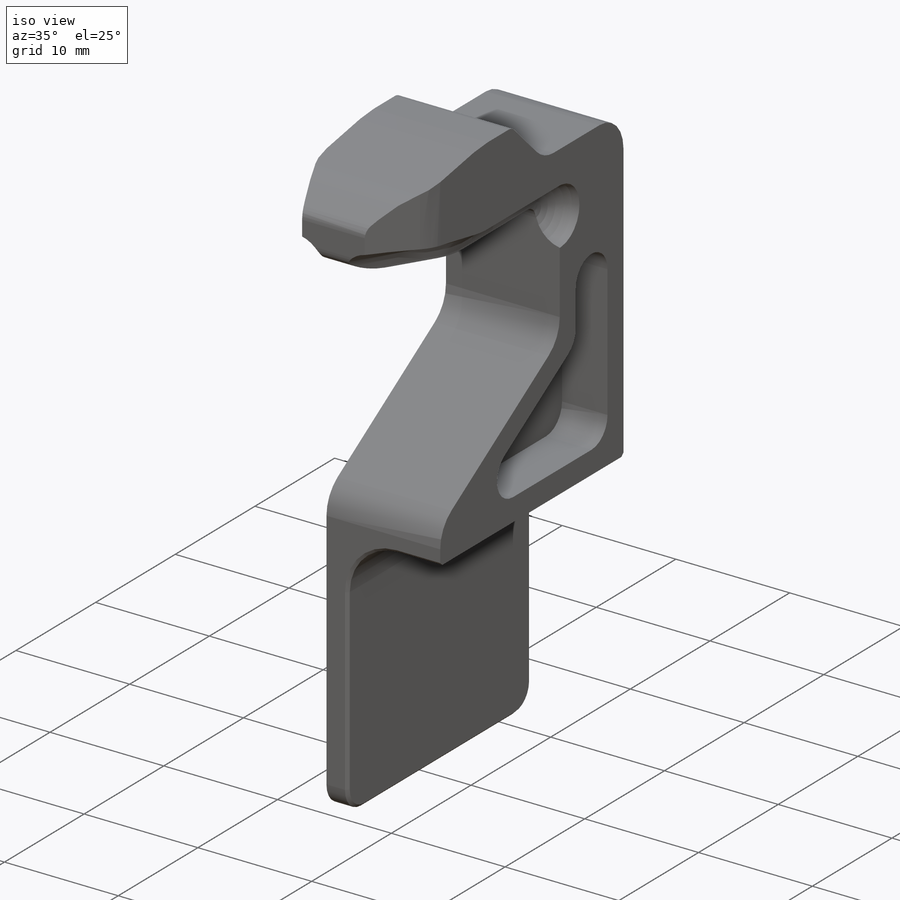
[diagram: iso view]
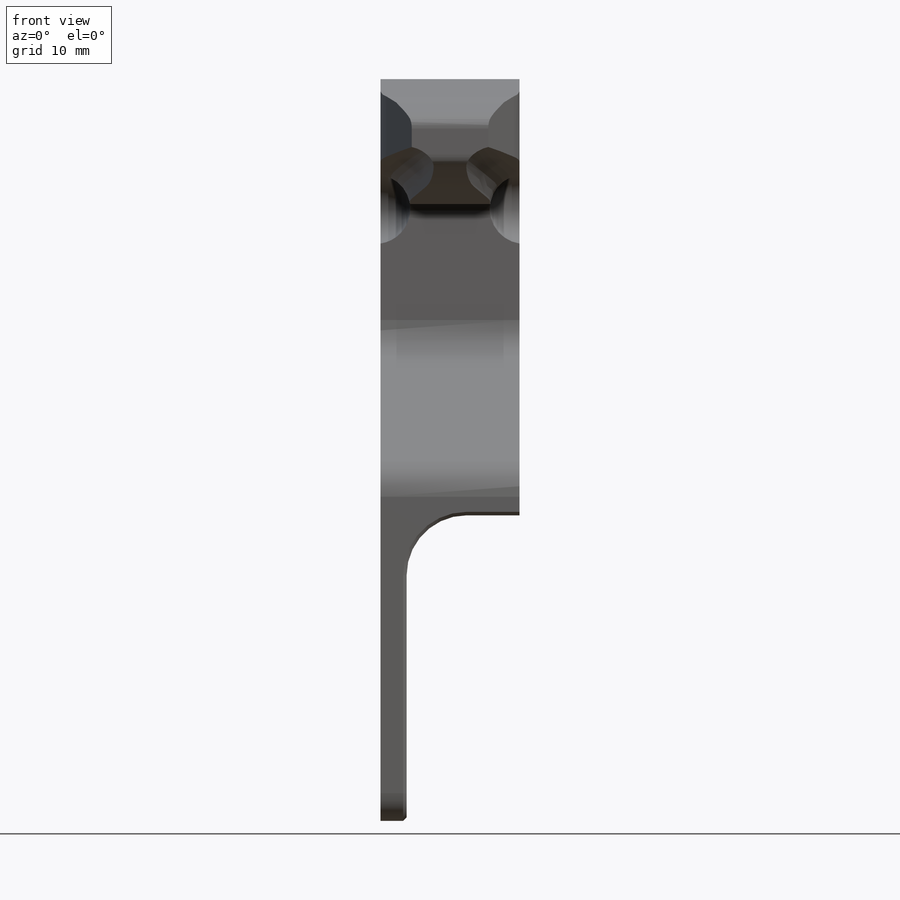
[diagram: front view]
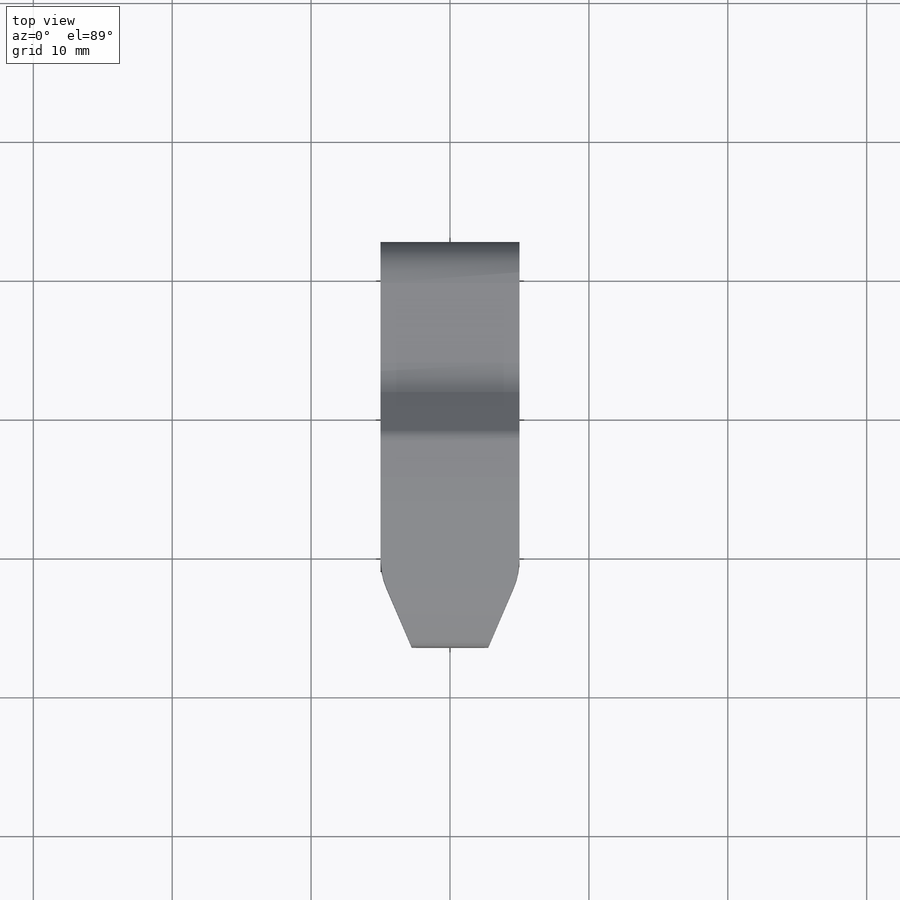
[diagram: top view]
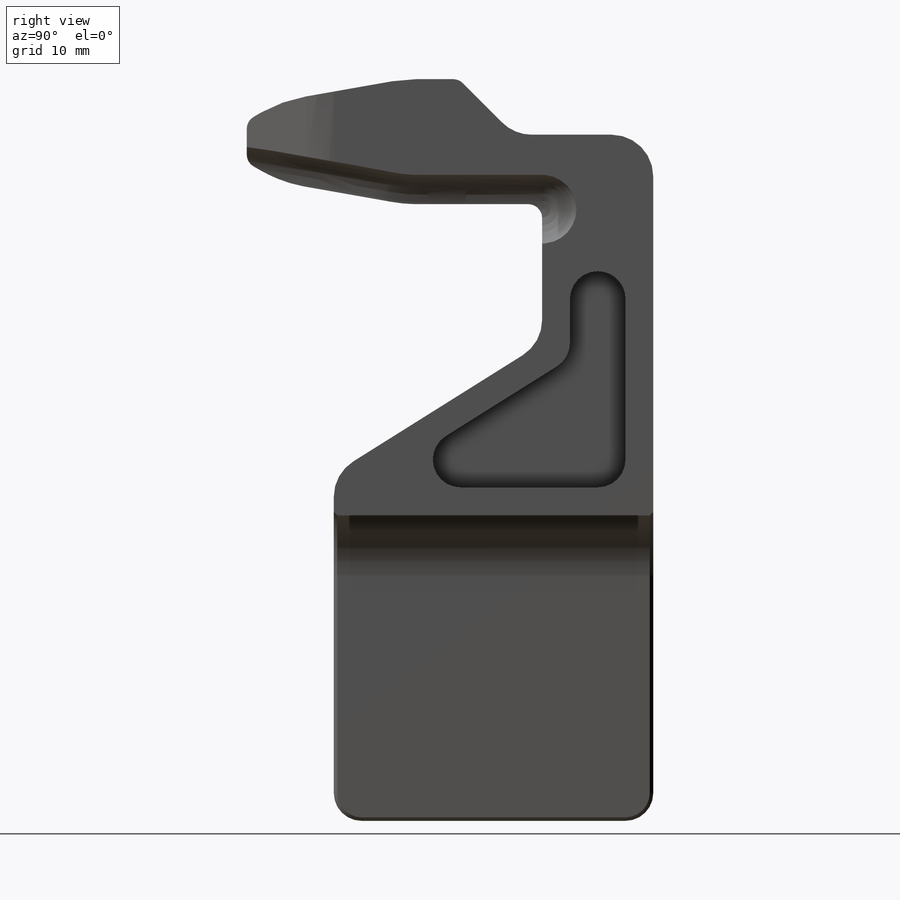
[diagram: right view]
SOLIDWORKS PART (.sldprt)
format: sldprt  version: not decoded by parser v0  size: 2,085,888 bytes
history: native  units: mm
features: sketch x11, fillet x8, cut_extrude x5, mirror x3, extrude x2, plane x2, chamfer x2, thread x2, material x1, revolve x1, sweep x1, delete_body x1, hole x1 (+11 scaffold rows collapsed)
feature tree (51):
  scaffold x11  (default folders/planes/origin — collapsed)
  material  "Titanium"
  sketch  "Sketch1"  dims[c1.D1=1.5mm c1.D7=0.2mm c1.D13=0.715mm c1.D14=0.715mm c2.D13=1.43mm c2.BallDiameter=6.35mm c2.D2=1.0mm c2.D7=0.75mm c2.D9=4.7625mm c2.D20=1.5875mm c2.D22=3.175mm c2.D11=0.75mm c2.D12=6.35mm c3.D13=~5.455409mm c3.D10=~4.153757mm c3.D18=~3.96875mm c4.D10=6.35mm c4.D4=~2.897365mm c4.D22=1.0mm c4.D2=19.0mm c4.D3=2.0mm c5.D4=10.0mm c5.D5=1.61mm c5.D6=0.56mm c5.D8=0.063mm c5.D9=0.428mm c5.D10=0.25mm c5.D11=2.64mm c5.D12=0.5mm c6.D5=1.61mm c6.D14=7.0mm c6.D15=4.0mm c6.D16=3.5mm c6.D17=3.0mm c6.D18=29.0mm c6.D19=22.0mm c6.D10=2.64mm c6.D11=11.0mm c7.D18=29.0mm c7.D20=~18.114459mm c8.D20=1.0deg c8.D21=~1.805213mm c9.D20=~18.093988mm c10.D20=1.0deg c10.D3=5.0mm c10.D4=20.0mm c10.D5=2.0mm c10.D6=21.48mm c10.D8=10.0mm c10.D9=20.0mm c10.D10=~11.728463mm c11.D10=~60.479111deg c11.D11=4.0mm c11.D12=4.0mm c11.D13=0.5mm c12.D10=~6.582228mm c13.D10=20.0deg c13.D14=22.0mm c13.D4=6.0mm c14.D10=13.0mm c14.D11=~1.868265mm c14.D14=20.0mm c14.D15=8.0mm c14.D16=55.0mm c14.D17=25.0mm c14.D12=29.0mm c15.D12=33.0deg c15.D18=1.889mm c15.D19=2.675mm c15.D20=~0.893537mm c15.D21=0.25mm c15.D14=3.2mm c16.D20=0.889mm c16.D16=3.5mm c16.D21=~34.801596mm c16.D23=3.2375mm c16.D24=~2.065985mm c16.D6=18.41mm c16.D12=2.0mm c16.D25=~5.277283mm c17.D25=25.0deg c18.D25=1.0mm c18.D26=~5.357854mm c19.D26=~20.88457deg c19.D12=~2.578508mm c20.D12=40.0deg c20.D13=4.0mm c20.D9=20.0mm c20.D14=2.5mm c20.D15=~1.683263mm c21.D15=10.0deg c21.D16=1.0mm c21.D18=2.0mm c21.D19=10.0mm c21.D8=12.0mm c21.D20=23.0mm c21.D21=15.0mm c21.D22=57.6mm c21.D23=32.6mm c21.D24=8.0mm c22.D8=5.0mm c22.D10=2.0mm c22.D25=35.6mm c22.D21=3.0mm c22.D26=~7.829911mm c23.D21=3.0mm c23.D8=39.73mm c23.D22=~2.309871mm c23.D23=4.2mm c24.D21=3.0mm c24.D23=2.0mm c24.D25=~7.829911mm c24.D22=~24.517564mm c24.D19=20.0mm c25.D22=~15.837735mm c25.D27=~18.662606mm c25.D3=4.0mm c25.D5=~6.951819mm c26.D5=45.0deg c26.D6=~10.245192mm c27.D6=20.0deg c27.D7=15.0mm c27.D9=10.0mm c28.D6=2.0mm c28.D10=17.0mm c28.D7=15.0mm c29.D10=20.0mm c29.D11=4.0mm c29.D9=1.0mm c29.D12=8.0mm c29.D13=2.0mm c30.D13=10.0deg c30.D14=~9.909293mm c31.D14=20.0deg c32.D14=23.0mm c32.D15=~6.657436mm c33.D15=~23.788722deg c34.D15=2.0mm c34.D16=~6.657436mm c35.D16=10.0deg c35.D10=19.25mm c35.D4=2.0mm c35.D7=10.0mm c36.D16=5.0mm c36.D9=13.0mm c36.D18=4.5mm c36.D19=5.0mm c36.D22=2.0mm c36.D23=~13.414214mm c36.D24=5.5mm c36.D25=~3.914214mm c37.D23=5.5mm c37.D26=2.0mm]
  extrude  "Boss-Extrude1"  Depth=10mm
  plane  "Plane2"
  sketch  "Sketch8"  dims[c1.D2=~4.73994mm c1.D3=~4.73994mm c2.D2=~4.447246mm c2.D3=76.0mm c2.D1=1.0mm c3.D3=18.5mm c3.D1=3.125mm c3.D4=0.9mm c4.D1=1.2mm c4.D3=3.0mm]
  cut_extrude  "Cut-Extrude3"  [1 undecoded]
  chamfer  "Chamfer1"  Distance=1mm Angle=60deg
  fillet  "Fillet10"  Radius=1mm
  fillet  "Fillet4"  Radius=2mm
  fillet  "Fillet5"  Radius=10mm
  sketch  "Sketch10"  dims[c1.D1=2.5mm c1.D2=~1.984375mm c2.D2=45.0deg c3.D2=4.0mm c3.D3=5.0mm]
  sketch  "3DSketch1"  dims[c1.D1=~2.362162mm c1.D3=2.0mm c1.D2=10.0mm c2.D1=2.0mm c2.D3=2.0mm c3.D1=2.0mm]
  revolve  "Revolve1"  Angle=360deg
  fillet  "Fillet9"  Radius=1mm
  sweep  "Cut-Sweep2"
  sketch  "Sketch13"  dims[c1.D1=3.0mm c1.D2=3.0mm c1.D3=7.0mm c2.D1=5.25mm c2.D3=2.25mm]
  cut_extrude  "Cut-Extrude5"  [1 undecoded]
  fillet  "Fillet6"  Radius=5mm
  mirror  "Mirror1"
  fillet  "Fillet8"  Radius=3mm
  chamfer  "Chamfer2"  Distance=0.25mm Angle=45deg
  plane  "midplane"
  sketch  "Sketch19"  dims[D1=2.0mm]
  cut_extrude  "Cut-Extrude8"  Depth=1mm
  fillet  "Fillet12"  Radius=2mm
  mirror  "Mirror3"
  mirror  "Mirror2"
  delete_body  "Body-Delete1"
  sketch  "Sketch14"  dims[D1=15.0mm]
  cut_extrude  "Cut-Extrude6"  [1 undecoded]
  sketch  "Sketch15"  dims[c1.D1=5.6044mm c1.D2=6.5103mm c1.D3=9.0mm c1.D4=6.0055mm c1.D5=~1.292177mm c2.D5=45.0deg c2.D6=1.0mm c2.D7=13.0mm c2.D8=4.0mm]
  extrude  "Boss-Extrude2"  [1 undecoded]
  fillet  "Fillet11"  Radius=2mm
  hole  "M3x0.5 Tapped Hole1"  Diameter=2.5mm Depth=8mm
  sketch  "Sketch17"
  sketch  "Sketch16"  dims[hole-wizard template sketch: 50 standard entries collapsed; hole parameters above]
  thread  "Hole Thread1"  Diameter=6mm  [1 undecoded]
  thread  "Hole Thread2"  Diameter=6mm  [1 undecoded]
  sketch  "Sketch18"  dims[D1=2.515mm]
  cut_extrude  "Cut-Extrude7"  [1 undecoded]
decode coverage: 26 of 37 modeling features carry decoded parameters
note: ~ marks probable driven/reference dimensions
note: 7 parameter values undecoded
summary: no parameter record found for 5 features
note: suppression state not decoded; provenance and decode notes live in map.json
